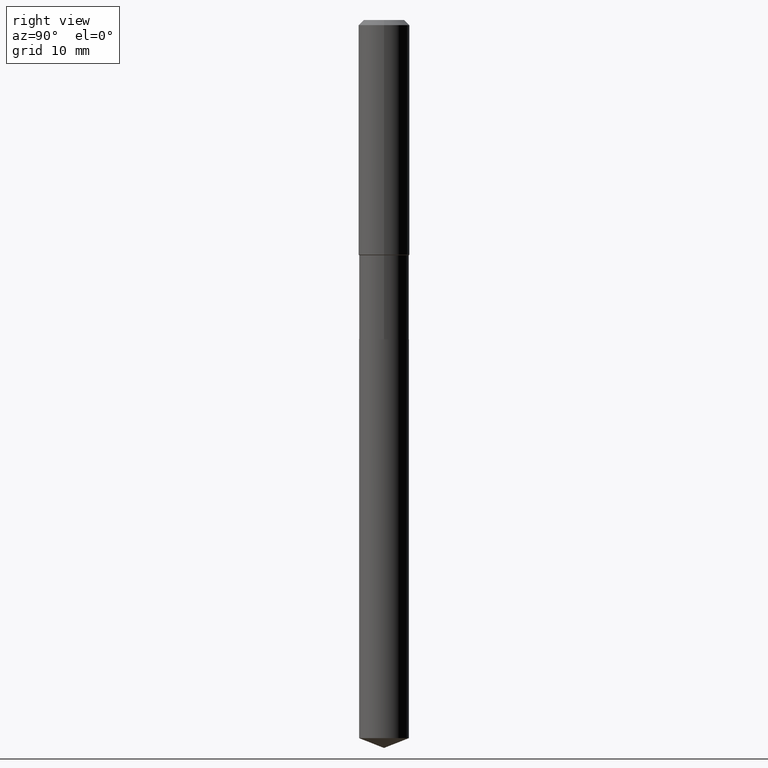
[diagram: clean part render]
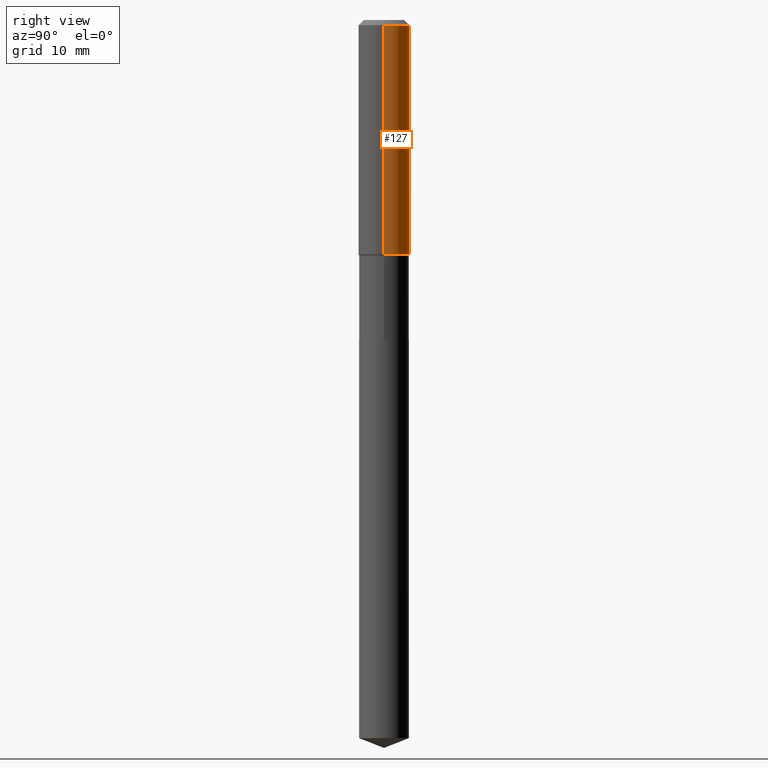
[diagram: same view with one face highlighted and labeled with its STEP entity id]
A machine part, right view. The second image highlights one B-rep face of the part: STEP entity #127.
In plain terms, the highlighted cylindrical surface (edge-blend (fillet) strip) has radius 4.0005 mm, axis along (-0, 0, 1).
Its self-contained STEP definition (entity closure, byte-faithful):
#27 = CARTESIAN_POINT ( 'NONE',  ( 7.703226739483226971E-31, -1.099816621735597538E-16, -0.03150000000000019451 ) ) ;
#44 = EDGE_CURVE ( 'NONE', #263, #480, #161, .T. ) ;
#70 = ORIENTED_EDGE ( 'NONE', *, *, #401, .F. ) ;
#79 = DIRECTION ( 'NONE',  ( 1.000000000000000000, -6.982962677686267499E-15, 0.000000000000000000 ) ) ;
#80 = CARTESIAN_POINT ( 'NONE',  ( 0.1575000000000000844, -1.099816621735587677E-15, 7.679978421878603638E-30 ) ) ;
#81 = LINE ( 'NONE', #80, #418 ) ;
#85 = DIRECTION ( 'NONE',  ( -2.445468806185136877E-29, 3.491481338843145188E-15, 1.000000000000000000 ) ) ;
#88 = CARTESIAN_POINT ( 'NONE',  ( 0.000000000000000000, 0.000000000000000000, 0.000000000000000000 ) ) ;
#95 = CARTESIAN_POINT ( 'NONE',  ( 0.1575000000000001676, -6.148673211769718717E-15, -1.446050000000000058 ) ) ;
#106 = VECTOR ( 'NONE', #85, 39.37007874015748143 ) ;
#127 = ADVANCED_FACE ( 'NONE', ( #132 ), #287, .T. ) ;
#132 = FACE_OUTER_BOUND ( 'NONE', #302, .T. ) ;
#141 = CARTESIAN_POINT ( 'NONE',  ( -0.1575000000000001676, -3.929751781211971266E-15, -1.446050000000000058 ) ) ;
#151 = CARTESIAN_POINT ( 'NONE',  ( -0.1575000000000000011, -1.460314317281686560E-15, -0.03150000000000019451 ) ) ;
#161 = LINE ( 'NONE', #427, #106 ) ;
#196 = EDGE_CURVE ( 'NONE', #222, #480, #442, .T. ) ;
#222 = VERTEX_POINT ( 'NONE', #440 ) ;
#244 = DIRECTION ( 'NONE',  ( 1.000000000000000000, -6.982962677686267499E-15, 4.876176775795936353E-29 ) ) ;
#247 = VERTEX_POINT ( 'NONE', #95 ) ;
#263 = VERTEX_POINT ( 'NONE', #141 ) ;
#265 = ORIENTED_EDGE ( 'NONE', *, *, #435, .T. ) ;
#287 = CYLINDRICAL_SURFACE ( 'NONE', #368, 0.1575000000000000844 ) ;
#291 = DIRECTION ( 'NONE',  ( 1.000000000000000000, -6.982962677686265922E-15, 0.000000000000000000 ) ) ;
#302 = EDGE_LOOP ( 'NONE', ( #265, #394, #447, #70 ) ) ;
#312 = CIRCLE ( 'NONE', #478, 0.1575000000000001676 ) ;
#348 = DIRECTION ( 'NONE',  ( -2.445468806185136877E-29, 3.491481338843145188E-15, 1.000000000000000000 ) ) ;
#351 = DIRECTION ( 'NONE',  ( -2.445468806185136597E-29, 3.491481338843145583E-15, 1.000000000000000000 ) ) ;
#368 = AXIS2_PLACEMENT_3D ( 'NONE', #88, #351, #244 ) ;
#370 = AXIS2_PLACEMENT_3D ( 'NONE', #27, #402, #291 ) ;
#394 = ORIENTED_EDGE ( 'NONE', *, *, #44, .T. ) ;
#401 = EDGE_CURVE ( 'NONE', #247, #222, #81, .T. ) ;
#402 = DIRECTION ( 'NONE',  ( -2.445468806185136597E-29, 3.491481338843145583E-15, 1.000000000000000000 ) ) ;
#418 = VECTOR ( 'NONE', #348, 39.37007874015748143 ) ;
#427 = CARTESIAN_POINT ( 'NONE',  ( -0.1575000000000000844, 1.119104808822158392E-15, -7.747322767151481189E-30 ) ) ;
#435 = EDGE_CURVE ( 'NONE', #247, #263, #312, .T. ) ;
#440 = CARTESIAN_POINT ( 'NONE',  ( 0.1575000000000000011, -1.209798283909146741E-15, -0.03150000000000019451 ) ) ;
#442 = CIRCLE ( 'NONE', #370, 0.1575000000000000011 ) ;
#447 = ORIENTED_EDGE ( 'NONE', *, *, #196, .F. ) ;
#457 = CARTESIAN_POINT ( 'NONE',  ( 3.536270167184016952E-29, -5.048856590034130447E-15, -1.446050000000000058 ) ) ;
#458 = DIRECTION ( 'NONE',  ( -2.445468806185136597E-29, 3.491481338843145583E-15, 1.000000000000000000 ) ) ;
#478 = AXIS2_PLACEMENT_3D ( 'NONE', #457, #458, #79 ) ;
#480 = VERTEX_POINT ( 'NONE', #151 ) ;